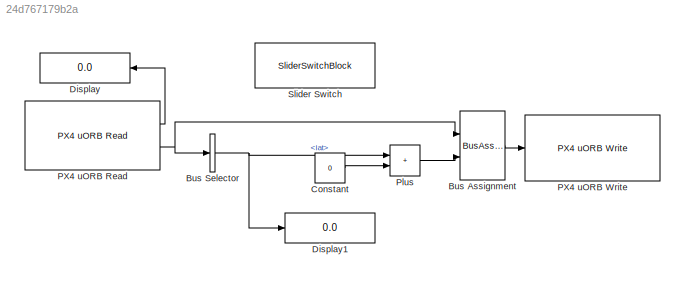
MODEL slx_24d767179b2a
KIND model
CONFIG AbsTol = auto
CONFIG EnableMultiTasking = on
CONFIG FixedStep = auto
CONFIG MaxStep = 0.005
CONFIG MinStep = auto
CONFIG RelTol = 1e-3
CONFIG SampleTimeConstraint = Unconstrained
CONFIG SolverName = FixedStepAuto
CONFIG StartTime = 0.0
CONFIG StopTime = inf
BLOCK [BusAssignment] Bus Assignment
  AssignedSignals = lat
  Ports = [2, 1]
BLOCK [BusSelector] Bus Selector
  OutputSignals = lat
  Ports = [1, 1]
BLOCK [Constant] Constant
  Value = 0
BLOCK [Display] Display
  Decimation = 1
  NameLocation = top
  Ports = [1]
BLOCK [Display] Display1
  Decimation = 1
  Ports = [1]
BLOCK [Reference] PX4 uORB Read  REF=px4uORBlib/PX4 uORB Read
  Ports = [0, 2]
  SourceBlock = px4uORBlib/PX4 uORB Read
  SourceProductBaseCode = PX4AUTOPILOTS
  SourceType = PX4 uORB Read
BLOCK [Reference] PX4 uORB Write  REF=px4uORBlib/PX4 uORB Write
  Ports = [1]
  SourceBlock = px4uORBlib/PX4 uORB Write
  SourceProductBaseCode = PX4AUTOPILOTS
  SourceType = PX4 uORB Write
BLOCK [Sum] Plus
  IconShape = rectangular
  OutDataTypeStr = int32
  Ports = [2, 1]
BLOCK [SliderSwitchBlock] Slider Switch
LINE Bus Assignment:1 -> PX4 uORB Write:1
NET Bus Selector:1 -> Display1:1, Plus:1
LINE Constant:1 -> Plus:2
LINE PX4 uORB Read:1 -> Display:1
NET PX4 uORB Read:2 -> Bus Assignment:1, Bus Selector:1
LINE Plus:1 -> Bus Assignment:2
note: NET lines group one-source signal fan-out (src -> all destinations, sorted); 1:1 wires keep LINE
